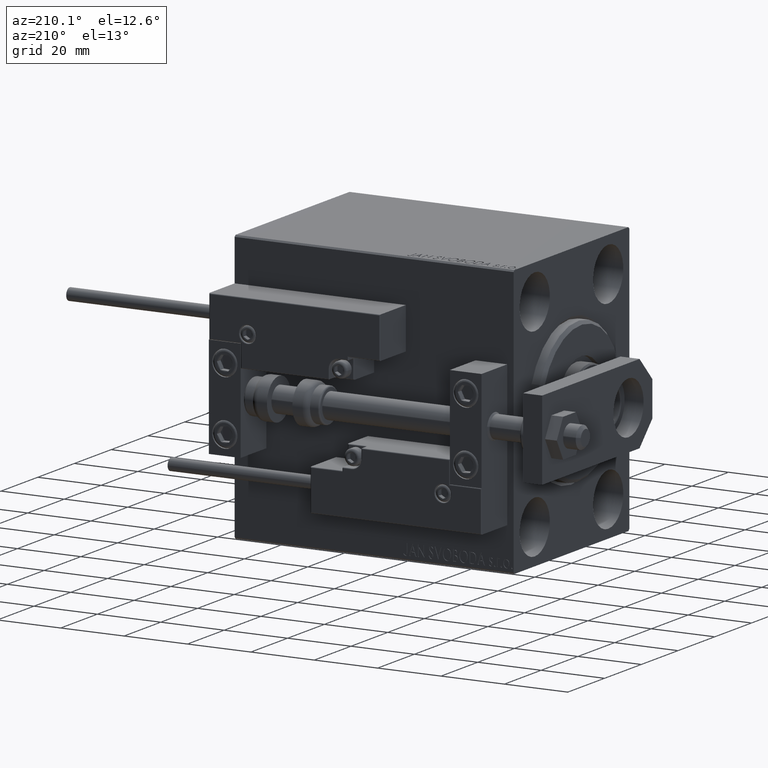
[diagram: clean part render]
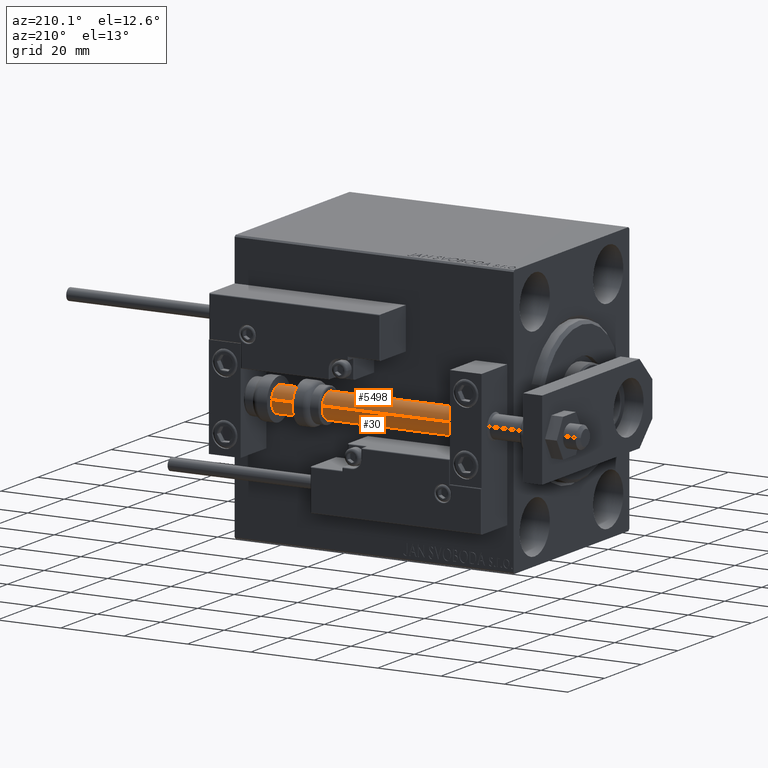
[diagram: same view with one multi-face feature highlighted, each face labeled with its STEP entity id]
A machine part, auxiliary view. The highlighted faces form ONE feature: a constant-radius fillet chain: 2 tangent blend faces with common blend radius 4 mm. The faces share edges in the B-rep.
Their STEP definitions:
[1] entity #5498 (Cylinder):
#2836 = CYLINDRICAL_SURFACE ( 'NONE', #37349, 4.000000000000000000 ) ;
#4546 = CARTESIAN_POINT ( 'NONE',  ( 0.000000000000000000, 0.000000000000000000, 2.000000000000029310 ) ) ;
#5405 = DIRECTION ( 'NONE',  ( -0.000000000000000000, -0.000000000000000000, -1.000000000000000000 ) ) ;
#5498 = ADVANCED_FACE ( 'NONE', ( #26745 ), #2836, .T. ) ;
#6937 = CARTESIAN_POINT ( 'NONE',  ( 0.000000000000000000, 0.000000000000000000, 88.00000000000000000 ) ) ;
#7430 = DIRECTION ( 'NONE',  ( 0.000000000000000000, 0.000000000000000000, 1.000000000000000000 ) ) ;
#9745 = ORIENTED_EDGE ( 'NONE', *, *, #26989, .F. ) ;
#16129 = CARTESIAN_POINT ( 'NONE',  ( -4.000000000000000000, 0.000000000000000000, 2.000000000000029310 ) ) ;
#16225 = VECTOR ( 'NONE', #5405, 1000.000000000000000 ) ;
#17367 = ORIENTED_EDGE ( 'NONE', *, *, #25173, .F. ) ;
#18633 = CIRCLE ( 'NONE', #37305, 4.000000000000000000 ) ;
#19429 = DIRECTION ( 'NONE',  ( -0.000000000000000000, -0.000000000000000000, -1.000000000000000000 ) ) ;
#19766 = VECTOR ( 'NONE', #19429, 1000.000000000000000 ) ;
#21882 = CIRCLE ( 'NONE', #36493, 4.000000000000000000 ) ;
#22961 = EDGE_CURVE ( 'NONE', #43120, #34044, #18633, .T. ) ;
#23500 = CARTESIAN_POINT ( 'NONE',  ( 4.000000000000000000, 4.898587196589412829E-16, 88.00000000000000000 ) ) ;
#23641 = VERTEX_POINT ( 'NONE', #35078 ) ;
#24386 = DIRECTION ( 'NONE',  ( -0.000000000000000000, -0.000000000000000000, 1.000000000000000000 ) ) ;
#25173 = EDGE_CURVE ( 'NONE', #35368, #34044, #28801, .T. ) ;
#26745 = FACE_OUTER_BOUND ( 'NONE', #48361, .T. ) ;
#26989 = EDGE_CURVE ( 'NONE', #23641, #35368, #21882, .T. ) ;
#28801 = LINE ( 'NONE', #33405, #16225 ) ;
#29894 = LINE ( 'NONE', #23500, #19766 ) ;
#30057 = DIRECTION ( 'NONE',  ( -0.000000000000000000, -0.000000000000000000, -1.000000000000000000 ) ) ;
#32277 = DIRECTION ( 'NONE',  ( 1.000000000000000000, 0.000000000000000000, 0.000000000000000000 ) ) ;
#33405 = CARTESIAN_POINT ( 'NONE',  ( -4.000000000000000000, 0.000000000000000000, 88.00000000000000000 ) ) ;
#34044 = VERTEX_POINT ( 'NONE', #16129 ) ;
#35078 = CARTESIAN_POINT ( 'NONE',  ( 4.000000000000000000, 4.898587196589412829E-16, 88.00000000000000000 ) ) ;
#35225 = CARTESIAN_POINT ( 'NONE',  ( 4.000000000000000000, 4.898587196589412829E-16, 2.000000000000029310 ) ) ;
#35368 = VERTEX_POINT ( 'NONE', #49416 ) ;
#36493 = AXIS2_PLACEMENT_3D ( 'NONE', #6937, #7430, #38739 ) ;
#37305 = AXIS2_PLACEMENT_3D ( 'NONE', #4546, #24386, #32277 ) ;
#37349 = AXIS2_PLACEMENT_3D ( 'NONE', #38704, #30057, #49659 ) ;
#38704 = CARTESIAN_POINT ( 'NONE',  ( 0.000000000000000000, 0.000000000000000000, 88.00000000000000000 ) ) ;
#38739 = DIRECTION ( 'NONE',  ( 1.000000000000000000, 0.000000000000000000, 0.000000000000000000 ) ) ;
#40256 = EDGE_CURVE ( 'NONE', #23641, #43120, #29894, .T. ) ;
#42180 = ORIENTED_EDGE ( 'NONE', *, *, #22961, .T. ) ;
#43120 = VERTEX_POINT ( 'NONE', #35225 ) ;
#48361 = EDGE_LOOP ( 'NONE', ( #9745, #49004, #42180, #17367 ) ) ;
#49004 = ORIENTED_EDGE ( 'NONE', *, *, #40256, .T. ) ;
#49416 = CARTESIAN_POINT ( 'NONE',  ( -4.000000000000000000, 0.000000000000000000, 88.00000000000000000 ) ) ;
#49659 = DIRECTION ( 'NONE',  ( -1.000000000000000000, 0.000000000000000000, 0.000000000000000000 ) ) ;
[2] entity #30 (Cylinder):
#30 = ADVANCED_FACE ( 'NONE', ( #29394 ), #40114, .T. ) ;
#174 = AXIS2_PLACEMENT_3D ( 'NONE', #16687, #8311, #928 ) ;
#928 = DIRECTION ( 'NONE',  ( 1.000000000000000000, 0.000000000000000000, 0.000000000000000000 ) ) ;
#1303 = EDGE_CURVE ( 'NONE', #34044, #43120, #1422, .T. ) ;
#1422 = CIRCLE ( 'NONE', #31497, 4.000000000000000000 ) ;
#4239 = CIRCLE ( 'NONE', #174, 4.000000000000000000 ) ;
#5405 = DIRECTION ( 'NONE',  ( -0.000000000000000000, -0.000000000000000000, -1.000000000000000000 ) ) ;
#8311 = DIRECTION ( 'NONE',  ( 0.000000000000000000, 0.000000000000000000, 1.000000000000000000 ) ) ;
#13422 = ORIENTED_EDGE ( 'NONE', *, *, #25173, .T. ) ;
#16129 = CARTESIAN_POINT ( 'NONE',  ( -4.000000000000000000, 0.000000000000000000, 2.000000000000029310 ) ) ;
#16225 = VECTOR ( 'NONE', #5405, 1000.000000000000000 ) ;
#16687 = CARTESIAN_POINT ( 'NONE',  ( 0.000000000000000000, 0.000000000000000000, 88.00000000000000000 ) ) ;
#17181 = CARTESIAN_POINT ( 'NONE',  ( 0.000000000000000000, 0.000000000000000000, 88.00000000000000000 ) ) ;
#18461 = AXIS2_PLACEMENT_3D ( 'NONE', #17181, #32728, #44674 ) ;
#19429 = DIRECTION ( 'NONE',  ( -0.000000000000000000, -0.000000000000000000, -1.000000000000000000 ) ) ;
#19766 = VECTOR ( 'NONE', #19429, 1000.000000000000000 ) ;
#23500 = CARTESIAN_POINT ( 'NONE',  ( 4.000000000000000000, 4.898587196589412829E-16, 88.00000000000000000 ) ) ;
#23641 = VERTEX_POINT ( 'NONE', #35078 ) ;
#24120 = CARTESIAN_POINT ( 'NONE',  ( 0.000000000000000000, 0.000000000000000000, 2.000000000000029310 ) ) ;
#25173 = EDGE_CURVE ( 'NONE', #35368, #34044, #28801, .T. ) ;
#25371 = ORIENTED_EDGE ( 'NONE', *, *, #40256, .F. ) ;
#27694 = ORIENTED_EDGE ( 'NONE', *, *, #1303, .T. ) ;
#28801 = LINE ( 'NONE', #33405, #16225 ) ;
#29394 = FACE_OUTER_BOUND ( 'NONE', #40296, .T. ) ;
#29894 = LINE ( 'NONE', #23500, #19766 ) ;
#31497 = AXIS2_PLACEMENT_3D ( 'NONE', #24120, #39152, #42737 ) ;
#32728 = DIRECTION ( 'NONE',  ( -0.000000000000000000, -0.000000000000000000, -1.000000000000000000 ) ) ;
#33405 = CARTESIAN_POINT ( 'NONE',  ( -4.000000000000000000, 0.000000000000000000, 88.00000000000000000 ) ) ;
#33659 = EDGE_CURVE ( 'NONE', #35368, #23641, #4239, .T. ) ;
#34044 = VERTEX_POINT ( 'NONE', #16129 ) ;
#35078 = CARTESIAN_POINT ( 'NONE',  ( 4.000000000000000000, 4.898587196589412829E-16, 88.00000000000000000 ) ) ;
#35225 = CARTESIAN_POINT ( 'NONE',  ( 4.000000000000000000, 4.898587196589412829E-16, 2.000000000000029310 ) ) ;
#35368 = VERTEX_POINT ( 'NONE', #49416 ) ;
#39152 = DIRECTION ( 'NONE',  ( -0.000000000000000000, -0.000000000000000000, 1.000000000000000000 ) ) ;
#40114 = CYLINDRICAL_SURFACE ( 'NONE', #18461, 4.000000000000000000 ) ;
#40256 = EDGE_CURVE ( 'NONE', #23641, #43120, #29894, .T. ) ;
#40296 = EDGE_LOOP ( 'NONE', ( #25371, #45856, #13422, #27694 ) ) ;
#42737 = DIRECTION ( 'NONE',  ( 1.000000000000000000, 0.000000000000000000, 0.000000000000000000 ) ) ;
#43120 = VERTEX_POINT ( 'NONE', #35225 ) ;
#44674 = DIRECTION ( 'NONE',  ( -1.000000000000000000, 0.000000000000000000, 0.000000000000000000 ) ) ;
#45856 = ORIENTED_EDGE ( 'NONE', *, *, #33659, .F. ) ;
#49416 = CARTESIAN_POINT ( 'NONE',  ( -4.000000000000000000, 0.000000000000000000, 88.00000000000000000 ) ) ;